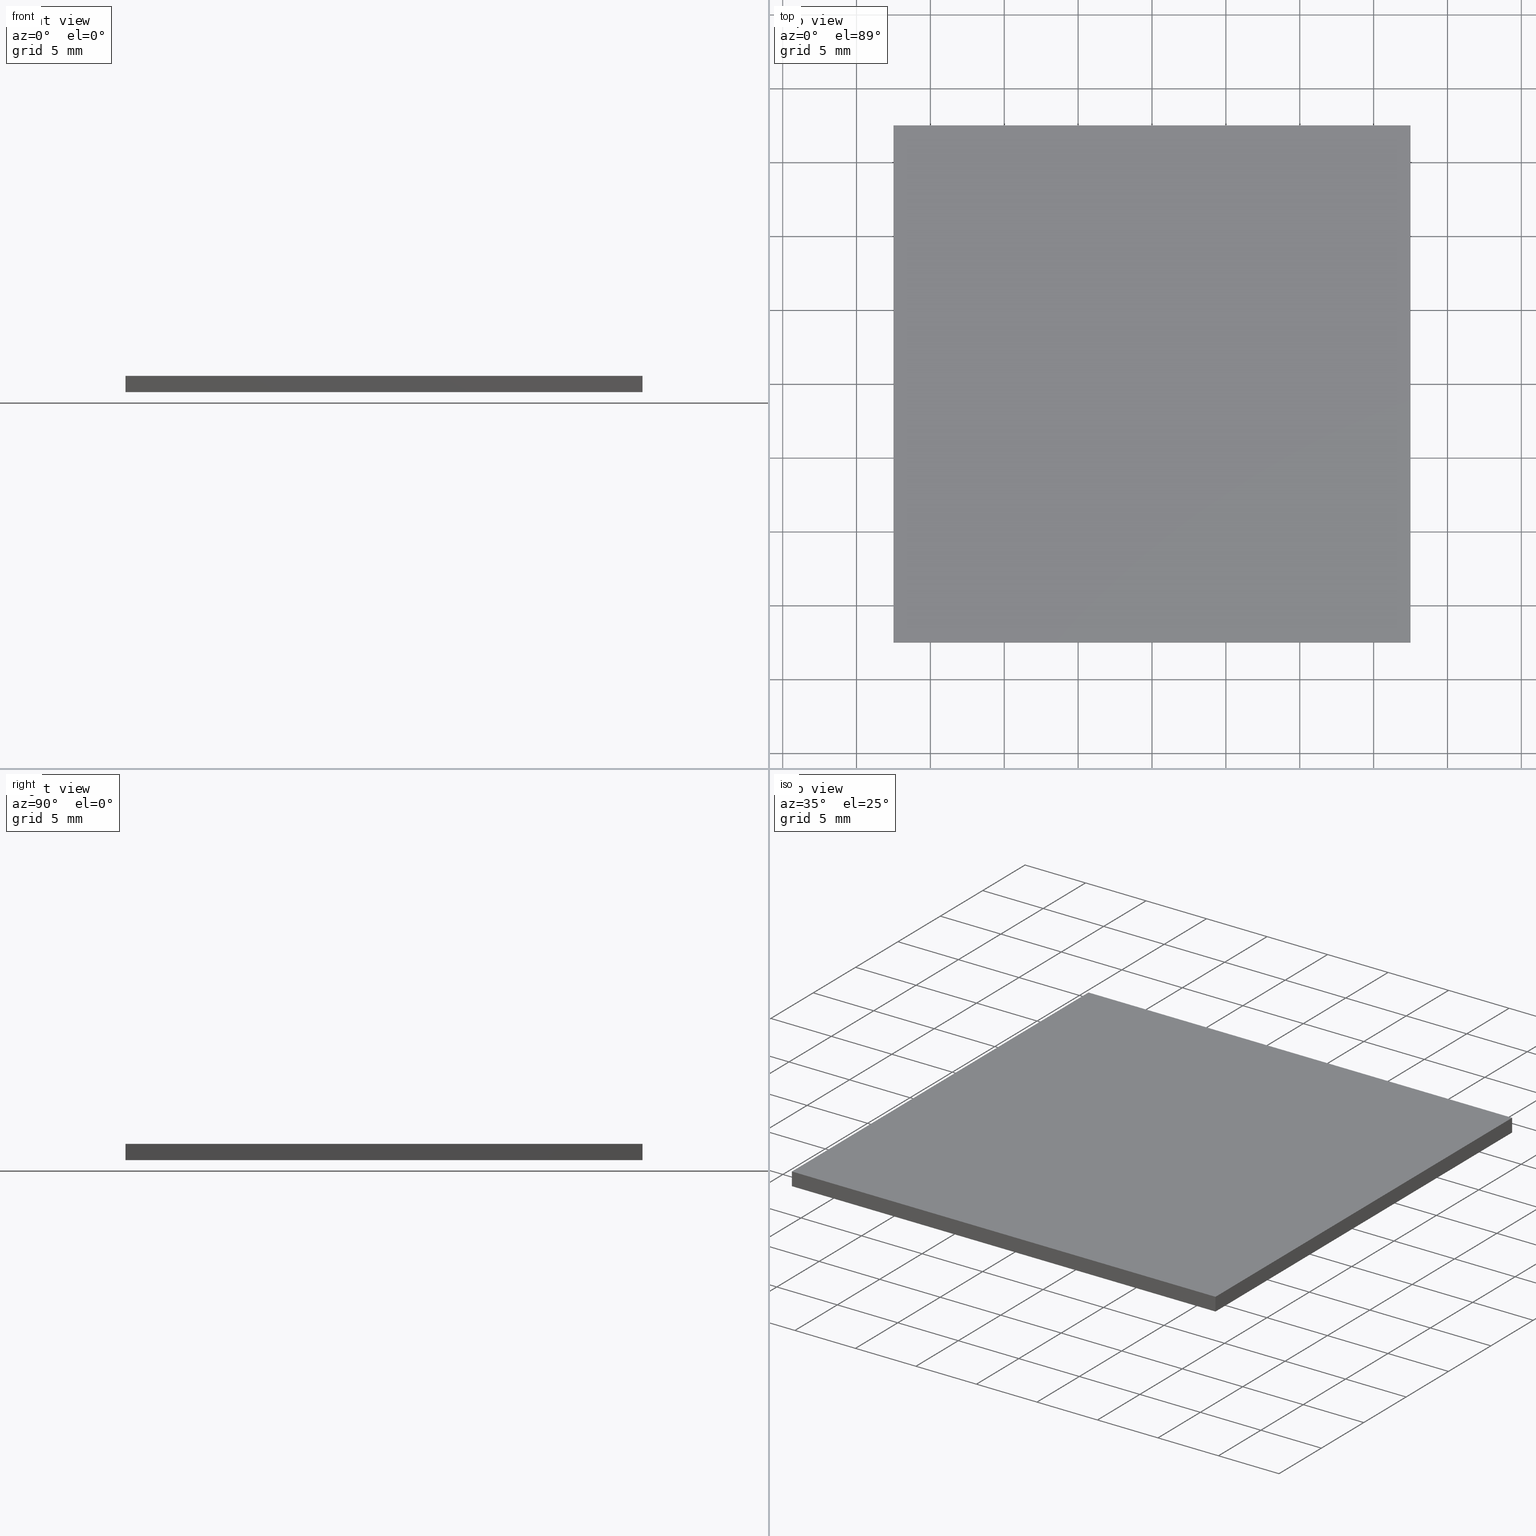
[diagram: canonical four-view strip — front | top / right | iso, engineering-drawing reading convention]
A machine part, canonical four-view strip (front | top / right | iso — engineering-drawing reading convention). The complete STEP part file that produces these views, byte-faithful:
ISO-10303-21;
HEADER;
FILE_DESCRIPTION (( 'STEP AP203' ),
    '1' );
FILE_NAME ('348508.STEP',
    '2019-07-31T07:45:03',
    ( '' ),
    ( '' ),
    'SwSTEP 2.0',
    'SolidWorks 2016',
    '' );
FILE_SCHEMA (( 'CONFIG_CONTROL_DESIGN' ));
ENDSEC;

DATA;
#1 = PRODUCT_RELATED_PRODUCT_CATEGORY ( 'detail', '', ( #181 ) ) ;
#2 = CALENDAR_DATE ( 2019, 31, 7 ) ;
#3 = ORIENTED_EDGE ( 'NONE', *, *, #198, .F. ) ;
#4 = COORDINATED_UNIVERSAL_TIME_OFFSET ( 8, 0, .AHEAD. ) ;
#5 = EDGE_LOOP ( 'NONE', ( #65, #3, #80, #45 ) ) ;
#6 = CC_DESIGN_PERSON_AND_ORGANIZATION_ASSIGNMENT ( #166, #72, ( #298 ) ) ;
#7 = ORIENTED_EDGE ( 'NONE', *, *, #24, .T. ) ;
#8 = CARTESIAN_POINT ( 'NONE',  ( 0.0000000000000000000, 0.0000000000000000000, 1.100000000000000100 ) ) ;
#9 = COORDINATED_UNIVERSAL_TIME_OFFSET ( 8, 0, .AHEAD. ) ;
#10 = LINE ( 'NONE', #204, #123 ) ;
#11 = DIRECTION ( 'NONE',  ( 1.000000000000000000, 0.0000000000000000000, 0.0000000000000000000 ) ) ;
#12 = CARTESIAN_POINT ( 'NONE',  ( -17.50000000000000000, 17.50000000000000000, 1.100000000000000100 ) ) ;
#13 = ORIENTED_EDGE ( 'NONE', *, *, #74, .F. ) ;
#14 = DATE_AND_TIME ( #88, #68 ) ;
#15 = PERSON_AND_ORGANIZATION_ROLE ( 'design_owner' ) ;
#16 = EDGE_CURVE ( 'NONE', #33, #271, #87, .T. ) ;
#17 = DIRECTION ( 'NONE',  ( 0.0000000000000000000, 0.0000000000000000000, 1.000000000000000000 ) ) ;
#18 = SECURITY_CLASSIFICATION ( '', '', #71 ) ;
#19 = DATE_TIME_ROLE ( 'creation_date' ) ;
#20 = LINE ( 'NONE', #57, #249 ) ;
#21 = VERTEX_POINT ( 'NONE', #201 ) ;
#22 = CALENDAR_DATE ( 2019, 31, 7 ) ;
#23 = FACE_OUTER_BOUND ( 'NONE', #5, .T. ) ;
#24 = EDGE_CURVE ( 'NONE', #292, #289, #20, .T. ) ;
#25 = APPROVAL ( #102, 'δָ��' ) ;
#26 = ORIENTED_EDGE ( 'NONE', *, *, #274, .T. ) ;
#27 = ORIENTED_EDGE ( 'NONE', *, *, #73, .F. ) ;
#28 = EDGE_CURVE ( 'NONE', #216, #21, #162, .T. ) ;
#29 = COORDINATED_UNIVERSAL_TIME_OFFSET ( 8, 0, .AHEAD. ) ;
#30 = AXIS2_PLACEMENT_3D ( 'NONE', #141, #11, #208 ) ;
#31 = ORIENTED_EDGE ( 'NONE', *, *, #182, .F. ) ;
#32 = VECTOR ( 'NONE', #77, 1000.000000000000000 ) ;
#33 = VERTEX_POINT ( 'NONE', #247 ) ;
#34 = DIRECTION ( 'NONE',  ( -1.000000000000000000, 0.0000000000000000000, 0.0000000000000000000 ) ) ;
#35 = CC_DESIGN_PERSON_AND_ORGANIZATION_ASSIGNMENT ( #158, #15, ( #231 ) ) ;
#36 = CARTESIAN_POINT ( 'NONE',  ( -17.50000000000000000, -17.50000000000000000, 0.0000000000000000000 ) ) ;
#37 = CARTESIAN_POINT ( 'NONE',  ( 17.50000000000000000, -17.50000000000000000, 0.0000000000000000000 ) ) ;
#38 = PERSON_AND_ORGANIZATION ( #165, #177 ) ;
#39 = DIRECTION ( 'NONE',  ( 1.000000000000000000, 0.0000000000000000000, 0.0000000000000000000 ) ) ;
#40 = APPLICATION_CONTEXT ( 'configuration controlled 3d designs of mechanical parts and assemblies' ) ;
#41 = PERSON_AND_ORGANIZATION ( #165, #177 ) ;
#42 = APPROVAL ( #240, 'δָ��' ) ;
#43 = APPROVAL_ROLE ( '' ) ;
#44 = ADVANCED_FACE ( 'NONE', ( #105 ), #145, .T. ) ;
#45 = ORIENTED_EDGE ( 'NONE', *, *, #182, .T. ) ;
#46 = APPLICATION_CONTEXT ( 'configuration controlled 3d designs of mechanical parts and assemblies' ) ;
#47 = APPROVAL_STATUS ( 'not_yet_approved' ) ;
#48 = EDGE_CURVE ( 'NONE', #60, #33, #272, .T. ) ;
#49 = PERSON_AND_ORGANIZATION_ROLE ( 'classification_officer' ) ;
#50 = ORIENTED_EDGE ( 'NONE', *, *, #24, .F. ) ;
#51 = PERSON_AND_ORGANIZATION ( #165, #177 ) ;
#52 = VECTOR ( 'NONE', #299, 1000.000000000000000 ) ;
#53 = MANIFOLD_SOLID_BREP ( '͹̨-����1', #69 ) ;
#54 = CALENDAR_DATE ( 2019, 31, 7 ) ;
#55 = CC_DESIGN_DATE_AND_TIME_ASSIGNMENT ( #268, #19, ( #286 ) ) ;
#56 = APPROVAL_PERSON_ORGANIZATION ( #115, #61, #100 ) ;
#57 = CARTESIAN_POINT ( 'NONE',  ( -17.50000000000000000, -17.50000000000000000, 0.0000000000000000000 ) ) ;
#58 = ORIENTED_EDGE ( 'NONE', *, *, #48, .T. ) ;
#59 = DATE_AND_TIME ( #54, #229 ) ;
#60 = VERTEX_POINT ( 'NONE', #163 ) ;
#61 = APPROVAL ( #47, 'δָ��' ) ;
#62 = DIRECTION ( 'NONE',  ( 0.0000000000000000000, 1.000000000000000000, 0.0000000000000000000 ) ) ;
#63 = DIRECTION ( 'NONE',  ( 0.0000000000000000000, 0.0000000000000000000, 1.000000000000000000 ) ) ;
#64 = APPROVAL_PERSON_ORGANIZATION ( #98, #25, #43 ) ;
#65 = ORIENTED_EDGE ( 'NONE', *, *, #310, .T. ) ;
#66 = CARTESIAN_POINT ( 'NONE',  ( -17.50000000000000000, -17.50000000000000000, 1.100000000000000100 ) ) ;
#67 = PLANE ( 'NONE',  #89 ) ;
#68 = LOCAL_TIME ( 15, 45, 3.000000000000000000, #260 ) ;
#69 = CLOSED_SHELL ( 'NONE', ( #148, #302, #96, #121, #279, #44 ) ) ;
#70 = VECTOR ( 'NONE', #186, 1000.000000000000000 ) ;
#71 = SECURITY_CLASSIFICATION_LEVEL ( 'unclassified' ) ;
#72 = PERSON_AND_ORGANIZATION_ROLE ( 'creator' ) ;
#73 = EDGE_CURVE ( 'NONE', #271, #216, #10, .T. ) ;
#74 = EDGE_CURVE ( 'NONE', #216, #60, #193, .T. ) ;
#75 = PERSON_AND_ORGANIZATION_ROLE ( 'classification_officer' ) ;
#76 = CC_DESIGN_PERSON_AND_ORGANIZATION_ASSIGNMENT ( #51, #211, ( #298 ) ) ;
#77 = DIRECTION ( 'NONE',  ( 0.0000000000000000000, 1.000000000000000000, 0.0000000000000000000 ) ) ;
#78 = DATE_AND_TIME ( #2, #197 ) ;
#79 = ADVANCED_BREP_SHAPE_REPRESENTATION ( '348508', ( #53, #86 ), #172 ) ;
#80 = ORIENTED_EDGE ( 'NONE', *, *, #16, .F. ) ;
#81 = ORIENTED_EDGE ( 'NONE', *, *, #28, .F. ) ;
#82 = PERSON_AND_ORGANIZATION ( #165, #177 ) ;
#83 = FACE_OUTER_BOUND ( 'NONE', #283, .T. ) ;
#84 = CC_DESIGN_DATE_AND_TIME_ASSIGNMENT ( #180, #196, ( #205 ) ) ;
#85 = PRODUCT_DEFINITION_SHAPE ( 'NONE', 'NONE',  #263 ) ;
#86 = AXIS2_PLACEMENT_3D ( 'NONE', #106, #150, #212 ) ;
#87 = LINE ( 'NONE', #232, #215 ) ;
#88 = CALENDAR_DATE ( 2019, 31, 7 ) ;
#89 = AXIS2_PLACEMENT_3D ( 'NONE', #119, #62, #118 ) ;
#90 = CARTESIAN_POINT ( 'NONE',  ( 17.50000000000000000, -17.50000000000000000, 1.100000000000000100 ) ) ;
#91 = ORIENTED_EDGE ( 'NONE', *, *, #274, .F. ) ;
#92 = CC_DESIGN_PERSON_AND_ORGANIZATION_ASSIGNMENT ( #200, #261, ( #178 ) ) ;
#93 = LINE ( 'NONE', #230, #296 ) ;
#94 = DIRECTION ( 'NONE',  ( 0.0000000000000000000, 0.0000000000000000000, -1.000000000000000000 ) ) ;
#95 = CARTESIAN_POINT ( 'NONE',  ( 0.0000000000000000000, 0.0000000000000000000, 0.0000000000000000000 ) ) ;
#96 = ADVANCED_FACE ( 'NONE', ( #168 ), #183, .F. ) ;
#97 = PRODUCT_DEFINITION_SHAPE ( 'NONE', 'NONE',  #286 ) ;
#98 = PERSON_AND_ORGANIZATION ( #165, #177 ) ;
#99 = APPLICATION_PROTOCOL_DEFINITION ( 'international standard', 'config_control_design', 1994, #40 ) ;
#100 = APPROVAL_ROLE ( '' ) ;
#101 = CC_DESIGN_DATE_AND_TIME_ASSIGNMENT ( #262, #151, ( #263 ) ) ;
#102 = APPROVAL_STATUS ( 'not_yet_approved' ) ;
#103 = EDGE_LOOP ( 'NONE', ( #26, #277, #13, #270 ) ) ;
#104 = DATE_AND_TIME ( #174, #160 ) ;
#105 = FACE_OUTER_BOUND ( 'NONE', #224, .T. ) ;
#106 = CARTESIAN_POINT ( 'NONE',  ( 0.0000000000000000000, 0.0000000000000000000, 0.0000000000000000000 ) ) ;
#107 = APPROVAL_ROLE ( '' ) ;
#108 = PRODUCT_RELATED_PRODUCT_CATEGORY ( 'detail', '', ( #231 ) ) ;
#109 = APPROVAL_DATE_TIME ( #104, #157 ) ;
#110 = COORDINATED_UNIVERSAL_TIME_OFFSET ( 8, 0, .AHEAD. ) ;
#111 = AXIS2_PLACEMENT_3D ( 'NONE', #308, #17, #256 ) ;
#112 = CC_DESIGN_PERSON_AND_ORGANIZATION_ASSIGNMENT ( #248, #49, ( #205 ) ) ;
#113 = APPROVAL_PERSON_ORGANIZATION ( #38, #285, #255 ) ;
#114 = ORIENTED_EDGE ( 'NONE', *, *, #16, .T. ) ;
#115 = PERSON_AND_ORGANIZATION ( #165, #177 ) ;
#116 = CC_DESIGN_DATE_AND_TIME_ASSIGNMENT ( #280, #235, ( #18 ) ) ;
#117 = DIRECTION ( 'NONE',  ( -1.000000000000000000, -0.0000000000000000000, -0.0000000000000000000 ) ) ;
#118 = DIRECTION ( 'NONE',  ( 0.0000000000000000000, -0.0000000000000000000, 1.000000000000000000 ) ) ;
#119 = CARTESIAN_POINT ( 'NONE',  ( -17.50000000000000000, -17.50000000000000000, 1.100000000000000100 ) ) ;
#120 = APPROVAL_DATE_TIME ( #78, #285 ) ;
#121 = ADVANCED_FACE ( 'NONE', ( #233 ), #67, .F. ) ;
#122 = DIRECTION ( 'NONE',  ( -0.0000000000000000000, -0.0000000000000000000, -1.000000000000000000 ) ) ;
#123 = VECTOR ( 'NONE', #117, 1000.000000000000000 ) ;
#124 = CARTESIAN_POINT ( 'NONE',  ( 17.50000000000000000, 17.50000000000000000, 1.100000000000000100 ) ) ;
#125 = APPLICATION_PROTOCOL_DEFINITION ( 'international standard', 'config_control_design', 1994, #46 ) ;
#126 = PERSON_AND_ORGANIZATION ( #165, #177 ) ;
#127 = CC_DESIGN_APPROVAL ( #285, ( #263 ) ) ;
#128 = APPLICATION_PROTOCOL_DEFINITION ( 'international standard', 'config_control_design', 1994, #170 ) ;
#129 = PERSON_AND_ORGANIZATION_ROLE ( 'design_supplier' ) ;
#130 = PERSON_AND_ORGANIZATION ( #165, #177 ) ;
#131 = DATE_AND_TIME ( #203, #217 ) ;
#132 = VECTOR ( 'NONE', #281, 1000.000000000000000 ) ;
#133 = ORIENTED_EDGE ( 'NONE', *, *, #198, .T. ) ;
#134 = CC_DESIGN_APPROVAL ( #61, ( #18 ) ) ;
#135 = CALENDAR_DATE ( 2019, 31, 7 ) ;
#136 = CC_DESIGN_PERSON_AND_ORGANIZATION_ASSIGNMENT ( #82, #305, ( #181 ) ) ;
#137 = UNCERTAINTY_MEASURE_WITH_UNIT (LENGTH_MEASURE( 1.000000000000000100E-005 ), #284, 'distance_accuracy_value', 'NONE');
#138 = COORDINATED_UNIVERSAL_TIME_OFFSET ( 8, 0, .AHEAD. ) ;
#139 = EDGE_LOOP ( 'NONE', ( #7, #31, #188, #315 ) ) ;
#140 = AXIS2_PLACEMENT_3D ( 'NONE', #90, #34, #63 ) ;
#141 = CARTESIAN_POINT ( 'NONE',  ( -17.50000000000000000, -17.50000000000000000, 1.100000000000000100 ) ) ;
#142 = CALENDAR_DATE ( 2019, 31, 7 ) ;
#143 = CARTESIAN_POINT ( 'NONE',  ( -17.50000000000000000, -17.50000000000000000, 0.0000000000000000000 ) ) ;
#144 = CC_DESIGN_APPROVAL ( #42, ( #178 ) ) ;
#145 = PLANE ( 'NONE',  #314 ) ;
#146 = DIRECTION ( 'NONE',  ( -0.0000000000000000000, -0.0000000000000000000, -1.000000000000000000 ) ) ;
#147 = APPROVAL_DATE_TIME ( #59, #25 ) ;
#148 = ADVANCED_FACE ( 'NONE', ( #23 ), #227, .F. ) ;
#149 = CC_DESIGN_SECURITY_CLASSIFICATION ( #18, ( #298 ) ) ;
#150 = DIRECTION ( 'NONE',  ( 0.0000000000000000000, 0.0000000000000000000, 1.000000000000000000 ) ) ;
#151 = DATE_TIME_ROLE ( 'creation_date' ) ;
#152 =( NAMED_UNIT ( * ) PLANE_ANGLE_UNIT ( ) SI_UNIT ( $, .RADIAN. ) );
#153 = SECURITY_CLASSIFICATION_LEVEL ( 'unclassified' ) ;
#154 = PERSON_AND_ORGANIZATION ( #165, #177 ) ;
#155 = CC_DESIGN_PERSON_AND_ORGANIZATION_ASSIGNMENT ( #245, #282, ( #263 ) ) ;
#156 = VECTOR ( 'NONE', #39, 1000.000000000000000 ) ;
#157 = APPROVAL ( #241, 'δָ��' ) ;
#158 = PERSON_AND_ORGANIZATION ( #165, #177 ) ;
#159 = ORIENTED_EDGE ( 'NONE', *, *, #73, .T. ) ;
#160 = LOCAL_TIME ( 15, 45, 3.000000000000000000, #171 ) ;
#161 = CC_DESIGN_PERSON_AND_ORGANIZATION_ASSIGNMENT ( #41, #173, ( #286 ) ) ;
#162 = LINE ( 'NONE', #304, #312 ) ;
#163 = CARTESIAN_POINT ( 'NONE',  ( -17.50000000000000000, -17.50000000000000000, 1.100000000000000100 ) ) ;
#164 = CARTESIAN_POINT ( 'NONE',  ( 17.50000000000000000, 17.50000000000000000, 0.0000000000000000000 ) ) ;
#165 = PERSON ( 'δָ��', 'δָ��', 'δָ��', ('δָ��'), ('δָ��'), ('δָ��') ) ;
#166 = PERSON_AND_ORGANIZATION ( #165, #177 ) ;
#167 = CARTESIAN_POINT ( 'NONE',  ( -17.50000000000000000, 17.50000000000000000, 1.100000000000000100 ) ) ;
#168 = FACE_OUTER_BOUND ( 'NONE', #103, .T. ) ;
#169 = APPROVAL_ROLE ( '' ) ;
#170 = APPLICATION_CONTEXT ( 'configuration controlled 3d designs of mechanical parts and assemblies' ) ;
#171 = COORDINATED_UNIVERSAL_TIME_OFFSET ( 8, 0, .AHEAD. ) ;
#172 =( GEOMETRIC_REPRESENTATION_CONTEXT ( 3 ) GLOBAL_UNCERTAINTY_ASSIGNED_CONTEXT ( ( #137 ) ) GLOBAL_UNIT_ASSIGNED_CONTEXT ( ( #284, #152, #258 ) ) REPRESENTATION_CONTEXT ( 'NONE', 'WORKASPACE' ) );
#173 = PERSON_AND_ORGANIZATION_ROLE ( 'creator' ) ;
#174 = CALENDAR_DATE ( 2019, 31, 7 ) ;
#175 = APPROVAL_PERSON_ORGANIZATION ( #154, #42, #107 ) ;
#176 = ORIENTED_EDGE ( 'NONE', *, *, #310, .F. ) ;
#177 = ORGANIZATION ( 'δָ��', 'δָ��', '' ) ;
#178 = PRODUCT_DEFINITION_FORMATION_WITH_SPECIFIED_SOURCE ( '�κ�', '', #231, .NOT_KNOWN. ) ;
#179 = APPROVAL_DATE_TIME ( #14, #42 ) ;
#180 = DATE_AND_TIME ( #142, #244 ) ;
#181 = PRODUCT ( '348508', '348508', '', ( #234 ) ) ;
#182 = EDGE_CURVE ( 'NONE', #33, #289, #269, .T. ) ;
#183 = PLANE ( 'NONE',  #30 ) ;
#184 = LOCAL_TIME ( 15, 45, 3.000000000000000000, #195 ) ;
#185 = DESIGN_CONTEXT ( 'detailed design', #40, 'design' ) ;
#186 = DIRECTION ( 'NONE',  ( -1.000000000000000000, -0.0000000000000000000, -0.0000000000000000000 ) ) ;
#187 = CARTESIAN_POINT ( 'NONE',  ( 17.50000000000000000, -17.50000000000000000, 1.100000000000000100 ) ) ;
#188 = ORIENTED_EDGE ( 'NONE', *, *, #48, .F. ) ;
#189 = PERSON_AND_ORGANIZATION ( #165, #177 ) ;
#190 = CARTESIAN_POINT ( 'NONE',  ( 17.50000000000000000, -17.50000000000000000, 0.0000000000000000000 ) ) ;
#191 = VECTOR ( 'NONE', #122, 1000.000000000000000 ) ;
#192 = APPLICATION_PROTOCOL_DEFINITION ( 'international standard', 'config_control_design', 1994, #309 ) ;
#193 = LINE ( 'NONE', #225, #223 ) ;
#194 = CC_DESIGN_APPROVAL ( #25, ( #286 ) ) ;
#195 = COORDINATED_UNIVERSAL_TIME_OFFSET ( 8, 0, .AHEAD. ) ;
#196 = DATE_TIME_ROLE ( 'classification_date' ) ;
#197 = LOCAL_TIME ( 15, 45, 3.000000000000000000, #29 ) ;
#198 = EDGE_CURVE ( 'NONE', #271, #202, #266, .T. ) ;
#199 = FACE_OUTER_BOUND ( 'NONE', #218, .T. ) ;
#200 = PERSON_AND_ORGANIZATION ( #165, #177 ) ;
#201 = CARTESIAN_POINT ( 'NONE',  ( -17.50000000000000000, 17.50000000000000000, 0.0000000000000000000 ) ) ;
#202 = VERTEX_POINT ( 'NONE', #164 ) ;
#203 = CALENDAR_DATE ( 2019, 31, 7 ) ;
#204 = CARTESIAN_POINT ( 'NONE',  ( -17.50000000000000000, 17.50000000000000000, 1.100000000000000100 ) ) ;
#205 = SECURITY_CLASSIFICATION ( '', '', #153 ) ;
#206 = LINE ( 'NONE', #143, #52 ) ;
#207 = PLANE ( 'NONE',  #295 ) ;
#208 = DIRECTION ( 'NONE',  ( 0.0000000000000000000, 0.0000000000000000000, -1.000000000000000000 ) ) ;
#209 = APPROVAL_DATE_TIME ( #131, #61 ) ;
#210 = MECHANICAL_CONTEXT ( 'NONE', #170, 'mechanical' ) ;
#211 = PERSON_AND_ORGANIZATION_ROLE ( 'design_supplier' ) ;
#212 = DIRECTION ( 'NONE',  ( 1.000000000000000000, 0.0000000000000000000, 0.0000000000000000000 ) ) ;
#213 = APPROVAL_STATUS ( 'not_yet_approved' ) ;
#214 = DIRECTION ( 'NONE',  ( 0.0000000000000000000, -0.0000000000000000000, -1.000000000000000000 ) ) ;
#215 = VECTOR ( 'NONE', #303, 1000.000000000000000 ) ;
#216 = VERTEX_POINT ( 'NONE', #167 ) ;
#217 = LOCAL_TIME ( 15, 45, 3.000000000000000000, #110 ) ;
#218 = EDGE_LOOP ( 'NONE', ( #114, #159, #267, #58 ) ) ;
#219 = APPROVAL ( #238, 'δָ��' ) ;
#220 = DESIGN_CONTEXT ( 'detailed design', #309, 'design' ) ;
#221 = CALENDAR_DATE ( 2019, 31, 7 ) ;
#222 = DIRECTION ( 'NONE',  ( 1.000000000000000000, 0.0000000000000000000, 0.0000000000000000000 ) ) ;
#223 = VECTOR ( 'NONE', #253, 1000.000000000000000 ) ;
#224 = EDGE_LOOP ( 'NONE', ( #176, #50, #91, #246 ) ) ;
#225 = CARTESIAN_POINT ( 'NONE',  ( -17.50000000000000000, -17.50000000000000000, 1.100000000000000100 ) ) ;
#226 = AXIS2_PLACEMENT_3D ( 'NONE', #12, #287, #214 ) ;
#227 = PLANE ( 'NONE',  #140 ) ;
#228 = APPROVAL_PERSON_ORGANIZATION ( #126, #157, #243 ) ;
#229 = LOCAL_TIME ( 15, 45, 3.000000000000000000, #242 ) ;
#230 = CARTESIAN_POINT ( 'NONE',  ( -17.50000000000000000, -17.50000000000000000, 1.100000000000000100 ) ) ;
#231 = PRODUCT ( '348508', '348508', '', ( #210 ) ) ;
#232 = CARTESIAN_POINT ( 'NONE',  ( 17.50000000000000000, -17.50000000000000000, 1.100000000000000100 ) ) ;
#233 = FACE_OUTER_BOUND ( 'NONE', #139, .T. ) ;
#234 = MECHANICAL_CONTEXT ( 'NONE', #46, 'mechanical' ) ;
#235 = DATE_TIME_ROLE ( 'classification_date' ) ;
#236 = LOCAL_TIME ( 15, 45, 3.000000000000000000, #4 ) ;
#237 = ORIENTED_EDGE ( 'NONE', *, *, #264, .T. ) ;
#238 = APPROVAL_STATUS ( 'not_yet_approved' ) ;
#239 = CC_DESIGN_APPROVAL ( #219, ( #298 ) ) ;
#240 = APPROVAL_STATUS ( 'not_yet_approved' ) ;
#241 = APPROVAL_STATUS ( 'not_yet_approved' ) ;
#242 = COORDINATED_UNIVERSAL_TIME_OFFSET ( 8, 0, .AHEAD. ) ;
#243 = APPROVAL_ROLE ( '' ) ;
#244 = LOCAL_TIME ( 15, 45, 3.000000000000000000, #306 ) ;
#245 = PERSON_AND_ORGANIZATION ( #165, #177 ) ;
#246 = ORIENTED_EDGE ( 'NONE', *, *, #264, .F. ) ;
#247 = CARTESIAN_POINT ( 'NONE',  ( 17.50000000000000000, -17.50000000000000000, 1.100000000000000100 ) ) ;
#248 = PERSON_AND_ORGANIZATION ( #165, #177 ) ;
#249 = VECTOR ( 'NONE', #222, 1000.000000000000000 ) ;
#250 = CARTESIAN_POINT ( 'NONE',  ( 17.50000000000000000, 17.50000000000000000, 1.100000000000000100 ) ) ;
#251 = CC_DESIGN_PERSON_AND_ORGANIZATION_ASSIGNMENT ( #130, #75, ( #18 ) ) ;
#252 = APPROVAL_DATE_TIME ( #311, #219 ) ;
#253 = DIRECTION ( 'NONE',  ( -0.0000000000000000000, -1.000000000000000000, -0.0000000000000000000 ) ) ;
#254 = APPROVAL_PERSON_ORGANIZATION ( #189, #219, #169 ) ;
#255 = APPROVAL_ROLE ( '' ) ;
#256 = DIRECTION ( 'NONE',  ( 1.000000000000000000, 0.0000000000000000000, 0.0000000000000000000 ) ) ;
#257 = LINE ( 'NONE', #190, #32 ) ;
#258 =( NAMED_UNIT ( * ) SI_UNIT ( $, .STERADIAN. ) SOLID_ANGLE_UNIT ( ) );
#259 = EDGE_CURVE ( 'NONE', #60, #292, #93, .T. ) ;
#260 = COORDINATED_UNIVERSAL_TIME_OFFSET ( 8, 0, .AHEAD. ) ;
#261 = PERSON_AND_ORGANIZATION_ROLE ( 'creator' ) ;
#262 = DATE_AND_TIME ( #293, #236 ) ;
#263 = PRODUCT_DEFINITION ( 'δ֪', '', #298, #185 ) ;
#264 = EDGE_CURVE ( 'NONE', #202, #21, #291, .T. ) ;
#265 = CC_DESIGN_PERSON_AND_ORGANIZATION_ASSIGNMENT ( #313, #129, ( #178 ) ) ;
#266 = LINE ( 'NONE', #250, #191 ) ;
#267 = ORIENTED_EDGE ( 'NONE', *, *, #74, .T. ) ;
#268 = DATE_AND_TIME ( #22, #294 ) ;
#269 = LINE ( 'NONE', #187, #132 ) ;
#270 = ORIENTED_EDGE ( 'NONE', *, *, #28, .T. ) ;
#271 = VERTEX_POINT ( 'NONE', #124 ) ;
#272 = LINE ( 'NONE', #66, #156 ) ;
#273 = DIRECTION ( 'NONE',  ( -0.0000000000000000000, -0.0000000000000000000, -1.000000000000000000 ) ) ;
#274 = EDGE_CURVE ( 'NONE', #21, #292, #206, .T. ) ;
#275 = DIRECTION ( 'NONE',  ( 0.0000000000000000000, 0.0000000000000000000, -1.000000000000000000 ) ) ;
#276 = DIRECTION ( 'NONE',  ( -1.000000000000000000, 0.0000000000000000000, -0.0000000000000000000 ) ) ;
#277 = ORIENTED_EDGE ( 'NONE', *, *, #259, .F. ) ;
#278 = CARTESIAN_POINT ( 'NONE',  ( -17.50000000000000000, 17.50000000000000000, 0.0000000000000000000 ) ) ;
#279 = ADVANCED_FACE ( 'NONE', ( #199 ), #207, .F. ) ;
#280 = DATE_AND_TIME ( #135, #184 ) ;
#281 = DIRECTION ( 'NONE',  ( -0.0000000000000000000, -0.0000000000000000000, -1.000000000000000000 ) ) ;
#282 = PERSON_AND_ORGANIZATION_ROLE ( 'creator' ) ;
#283 = EDGE_LOOP ( 'NONE', ( #237, #81, #27, #133 ) ) ;
#284 =( LENGTH_UNIT ( ) NAMED_UNIT ( * ) SI_UNIT ( .MILLI., .METRE. ) );
#285 = APPROVAL ( #213, 'δָ��' ) ;
#286 = PRODUCT_DEFINITION ( 'δ֪', '', #178, #220 ) ;
#287 = DIRECTION ( 'NONE',  ( 0.0000000000000000000, -1.000000000000000000, 0.0000000000000000000 ) ) ;
#288 = LOCAL_TIME ( 15, 45, 3.000000000000000000, #138 ) ;
#289 = VERTEX_POINT ( 'NONE', #37 ) ;
#290 = CC_DESIGN_APPROVAL ( #157, ( #205 ) ) ;
#291 = LINE ( 'NONE', #278, #70 ) ;
#292 = VERTEX_POINT ( 'NONE', #36 ) ;
#293 = CALENDAR_DATE ( 2019, 31, 7 ) ;
#294 = LOCAL_TIME ( 15, 45, 3.000000000000000000, #9 ) ;
#295 = AXIS2_PLACEMENT_3D ( 'NONE', #8, #275, #276 ) ;
#296 = VECTOR ( 'NONE', #273, 1000.000000000000000 ) ;
#297 = DIRECTION ( 'NONE',  ( -1.000000000000000000, 0.0000000000000000000, -0.0000000000000000000 ) ) ;
#298 = PRODUCT_DEFINITION_FORMATION_WITH_SPECIFIED_SOURCE ( '�κ�', '', #181, .NOT_KNOWN. ) ;
#299 = DIRECTION ( 'NONE',  ( -0.0000000000000000000, -1.000000000000000000, -0.0000000000000000000 ) ) ;
#300 = SHAPE_DEFINITION_REPRESENTATION ( #97, #79 ) ;
#301 = PLANE ( 'NONE',  #226 ) ;
#302 = ADVANCED_FACE ( 'NONE', ( #83 ), #301, .F. ) ;
#303 = DIRECTION ( 'NONE',  ( 0.0000000000000000000, 1.000000000000000000, 0.0000000000000000000 ) ) ;
#304 = CARTESIAN_POINT ( 'NONE',  ( -17.50000000000000000, 17.50000000000000000, 1.100000000000000100 ) ) ;
#305 = PERSON_AND_ORGANIZATION_ROLE ( 'design_owner' ) ;
#306 = COORDINATED_UNIVERSAL_TIME_OFFSET ( 8, 0, .AHEAD. ) ;
#307 = CC_DESIGN_SECURITY_CLASSIFICATION ( #205, ( #178 ) ) ;
#308 = CARTESIAN_POINT ( 'NONE',  ( 0.0000000000000000000, 0.0000000000000000000, 0.0000000000000000000 ) ) ;
#309 = APPLICATION_CONTEXT ( 'configuration controlled 3d designs of mechanical parts and assemblies' ) ;
#310 = EDGE_CURVE ( 'NONE', #289, #202, #257, .T. ) ;
#311 = DATE_AND_TIME ( #221, #288 ) ;
#312 = VECTOR ( 'NONE', #146, 1000.000000000000000 ) ;
#313 = PERSON_AND_ORGANIZATION ( #165, #177 ) ;
#314 = AXIS2_PLACEMENT_3D ( 'NONE', #95, #94, #297 ) ;
#315 = ORIENTED_EDGE ( 'NONE', *, *, #259, .T. ) ;
ENDSEC;
END-ISO-10303-21;
